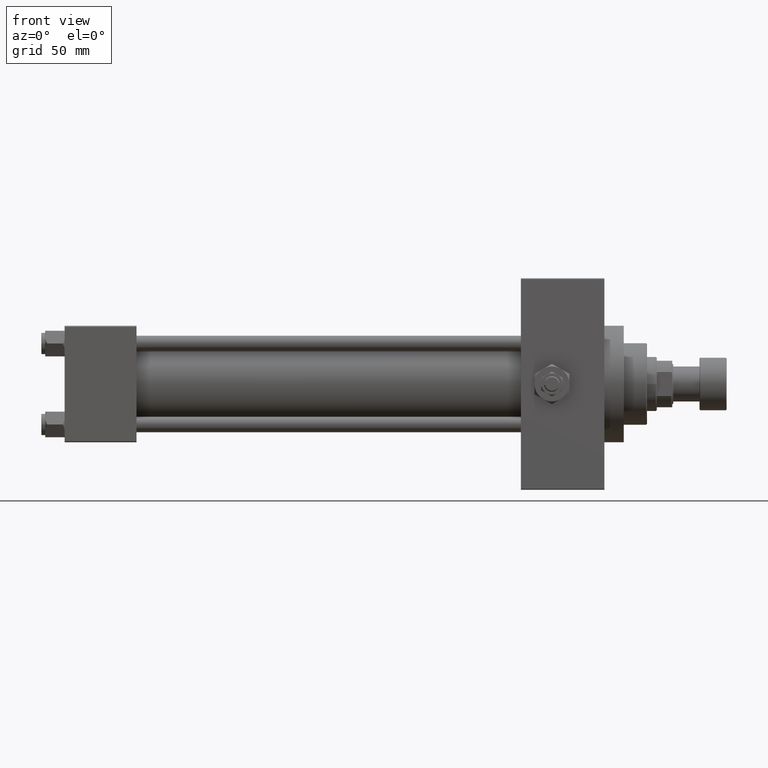
[diagram: clean part render]
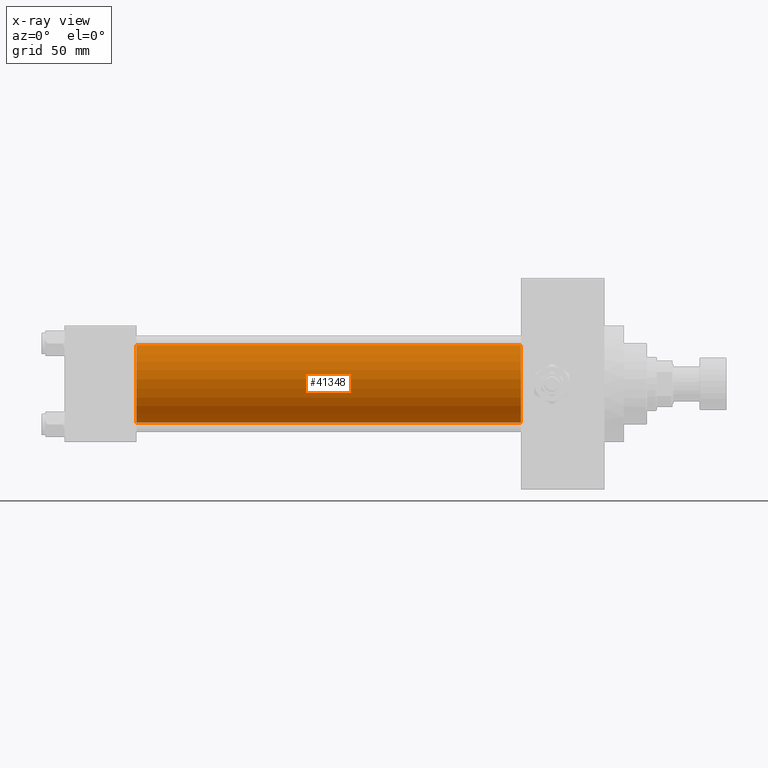
[diagram: x-ray — body ghosted, one internal face saturated and labeled with its STEP entity id]
A machine part, front view, then the same camera in x-ray: the body is ghosted and one INTERNAL B-rep face — a face not visible from any outside direction — is saturated and labeled: STEP entity #41348.
In plain terms, the highlighted cylindrical surface (partial cylindrical patch) has radius 20 mm, axis along (-1, -0, -0).
Its self-contained STEP definition (entity closure, byte-faithful):
#1551 = CARTESIAN_POINT ( 'NONE',  ( 235.0000000000000284, -2.602085213965210642E-15, 0.000000000000000000 ) ) ;
#2303 = VERTEX_POINT ( 'NONE', #12388 ) ;
#4090 = CARTESIAN_POINT ( 'NONE',  ( 235.0000000000000284, -2.602085213965210642E-15, 20.00000000000000000 ) ) ;
#4519 = DIRECTION ( 'NONE',  ( 0.000000000000000000, 0.000000000000000000, -1.000000000000000000 ) ) ;
#4888 = CARTESIAN_POINT ( 'NONE',  ( 37.00000000000000000, -2.602085213965210642E-15, 20.00000000000000000 ) ) ;
#5725 = EDGE_CURVE ( 'NONE', #39792, #2303, #46369, .T. ) ;
#6281 = CYLINDRICAL_SURFACE ( 'NONE', #15161, 20.00000000000000000 ) ;
#7224 = AXIS2_PLACEMENT_3D ( 'NONE', #15775, #31775, #4519 ) ;
#8585 = DIRECTION ( 'NONE',  ( -1.000000000000000000, -0.000000000000000000, -0.000000000000000000 ) ) ;
#10355 = EDGE_CURVE ( 'NONE', #38524, #39792, #26843, .T. ) ;
#11049 = EDGE_CURVE ( 'NONE', #46365, #2303, #41893, .T. ) ;
#12388 = CARTESIAN_POINT ( 'NONE',  ( 37.00000000000000000, -1.527916156705042519E-16, -20.00000000000000000 ) ) ;
#12854 = DIRECTION ( 'NONE',  ( 0.000000000000000000, 0.000000000000000000, -1.000000000000000000 ) ) ;
#15161 = AXIS2_PLACEMENT_3D ( 'NONE', #1551, #47578, #36307 ) ;
#15775 = CARTESIAN_POINT ( 'NONE',  ( 37.00000000000000000, -2.602085213965210642E-15, 0.000000000000000000 ) ) ;
#16190 = VECTOR ( 'NONE', #8585, 1000.000000000000000 ) ;
#18118 = EDGE_LOOP ( 'NONE', ( #28406, #31557, #34723, #48448 ) ) ;
#21358 = CARTESIAN_POINT ( 'NONE',  ( 235.0000000000000284, -1.527916156705042519E-16, -20.00000000000000000 ) ) ;
#22858 = CARTESIAN_POINT ( 'NONE',  ( 235.0000000000000284, -1.527916156705042519E-16, -20.00000000000000000 ) ) ;
#24097 = CIRCLE ( 'NONE', #48065, 20.00000000000000000 ) ;
#24141 = DIRECTION ( 'NONE',  ( 1.000000000000000000, 0.000000000000000000, 0.000000000000000000 ) ) ;
#25295 = FACE_OUTER_BOUND ( 'NONE', #18118, .T. ) ;
#26843 = LINE ( 'NONE', #4090, #42587 ) ;
#28406 = ORIENTED_EDGE ( 'NONE', *, *, #45356, .T. ) ;
#30852 = DIRECTION ( 'NONE',  ( -1.000000000000000000, -0.000000000000000000, -0.000000000000000000 ) ) ;
#31557 = ORIENTED_EDGE ( 'NONE', *, *, #11049, .T. ) ;
#31775 = DIRECTION ( 'NONE',  ( 1.000000000000000000, 0.000000000000000000, 0.000000000000000000 ) ) ;
#31881 = CARTESIAN_POINT ( 'NONE',  ( 235.0000000000000284, -2.602085213965210642E-15, 0.000000000000000000 ) ) ;
#34723 = ORIENTED_EDGE ( 'NONE', *, *, #5725, .F. ) ;
#36307 = DIRECTION ( 'NONE',  ( 0.000000000000000000, 0.000000000000000000, 1.000000000000000000 ) ) ;
#38524 = VERTEX_POINT ( 'NONE', #39949 ) ;
#39792 = VERTEX_POINT ( 'NONE', #4888 ) ;
#39949 = CARTESIAN_POINT ( 'NONE',  ( 235.0000000000000284, -2.602085213965210642E-15, 20.00000000000000000 ) ) ;
#41348 = ADVANCED_FACE ( 'NONE', ( #25295 ), #6281, .F. ) ;
#41893 = LINE ( 'NONE', #22858, #16190 ) ;
#42587 = VECTOR ( 'NONE', #30852, 1000.000000000000000 ) ;
#45356 = EDGE_CURVE ( 'NONE', #38524, #46365, #24097, .T. ) ;
#46365 = VERTEX_POINT ( 'NONE', #21358 ) ;
#46369 = CIRCLE ( 'NONE', #7224, 20.00000000000000000 ) ;
#47578 = DIRECTION ( 'NONE',  ( -1.000000000000000000, -0.000000000000000000, -0.000000000000000000 ) ) ;
#48065 = AXIS2_PLACEMENT_3D ( 'NONE', #31881, #24141, #12854 ) ;
#48448 = ORIENTED_EDGE ( 'NONE', *, *, #10355, .F. ) ;